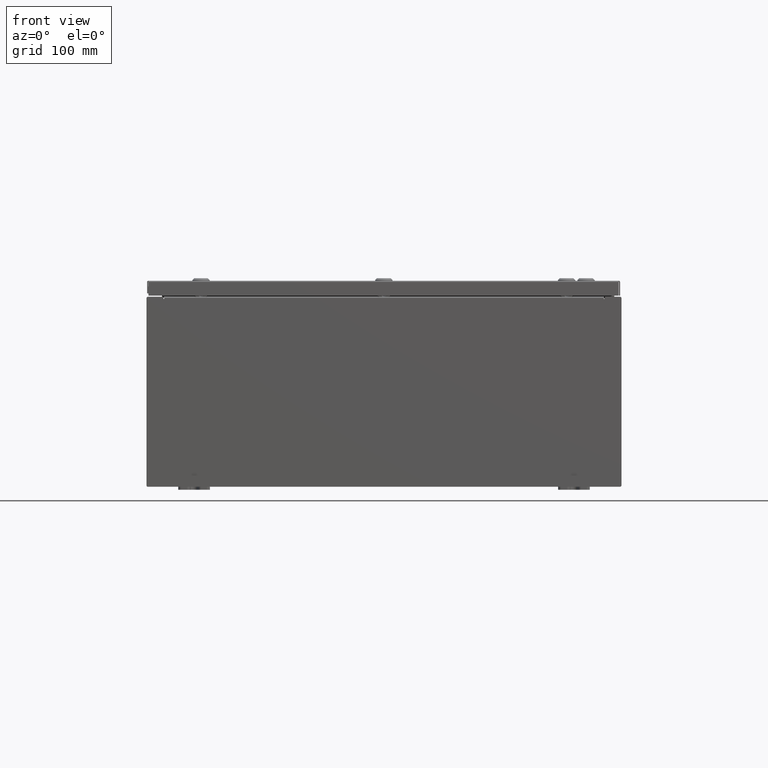
[diagram: clean part render]
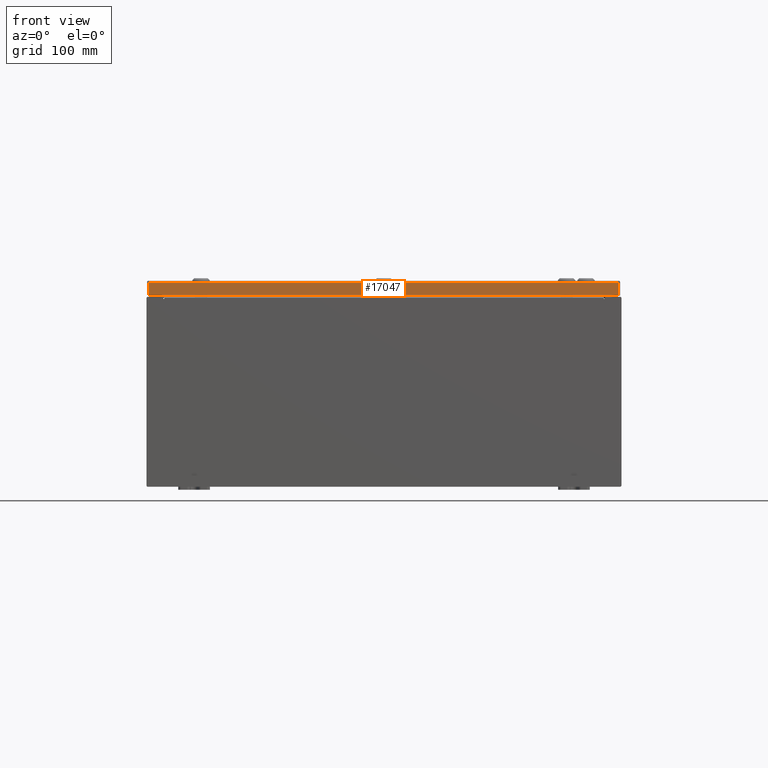
[diagram: same view with one face highlighted and labeled with its STEP entity id]
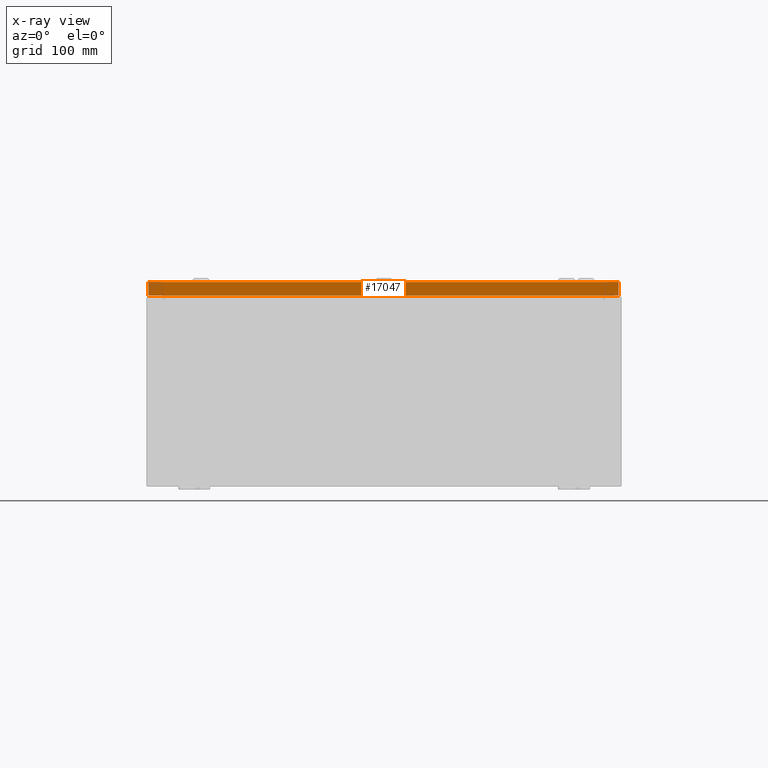
[diagram: x-ray of the same camera — body ghosted, the highlighted face saturated]
A machine part, front view. The second image highlights one B-rep face of the part: STEP entity #17047.
The next image is the same camera in x-ray: the body ghosted, the highlighted face saturated — about 0% of this face is hidden behind the body in this view.
In plain terms, the highlighted planar face has unit normal (-0, 1, -0).
Its self-contained STEP definition (entity closure, byte-faithful):
#231 = CARTESIAN_POINT ( 'NONE',  ( 14.84865786437626800, -14.93750000000000000, -0.9376999999999997600 ) ) ;
#351 = DIRECTION ( 'NONE',  ( 0.0000000000000000000, 2.532419924601866100E-015, 1.000000000000000000 ) ) ;
#1551 = CARTESIAN_POINT ( 'NONE',  ( -14.84865786437626400, -14.93750000000000000, -0.9376999999999959800 ) ) ;
#4479 = EDGE_CURVE ( 'NONE', #24484, #44148, #20479, .T. ) ;
#5174 = FACE_OUTER_BOUND ( 'NONE', #65646, .T. ) ;
#5704 = VECTOR ( 'NONE', #6903, 39.37007874015748100 ) ;
#6721 = DIRECTION ( 'NONE',  ( -0.0000000000000000000, -2.532419924601866100E-015, -1.000000000000000000 ) ) ;
#6903 = DIRECTION ( 'NONE',  ( -1.000000000000000000, 4.379057701015054300E-047, 1.280196549332207500E-016 ) ) ;
#13436 = EDGE_CURVE ( 'NONE', #44148, #46303, #19088, .T. ) ;
#14219 = ORIENTED_EDGE ( 'NONE', *, *, #13436, .F. ) ;
#15399 = PLANE ( 'NONE',  #52127 ) ;
#17047 = ADVANCED_FACE ( 'NONE', ( #5174 ), #15399, .F. ) ;
#17332 = VECTOR ( 'NONE', #6721, 39.37007874015748100 ) ;
#19088 = LINE ( 'NONE', #57330, #5704 ) ;
#20479 = LINE ( 'NONE', #60734, #17332 ) ;
#24484 = VERTEX_POINT ( 'NONE', #49614 ) ;
#25185 = VECTOR ( 'NONE', #63222, 39.37007874015748100 ) ;
#26293 = ORIENTED_EDGE ( 'NONE', *, *, #4479, .F. ) ;
#30472 = DIRECTION ( 'NONE',  ( 0.0000000000000000000, -2.532419924601866100E-015, -1.000000000000000000 ) ) ;
#30605 = DIRECTION ( 'NONE',  ( -3.241995248935437300E-031, 1.000000000000000000, -2.532419924601866100E-015 ) ) ;
#33370 = VECTOR ( 'NONE', #30472, 39.37007874015748100 ) ;
#38709 = ORIENTED_EDGE ( 'NONE', *, *, #59004, .T. ) ;
#39081 = EDGE_CURVE ( 'NONE', #64699, #24484, #65707, .T. ) ;
#44148 = VERTEX_POINT ( 'NONE', #231 ) ;
#45583 = ORIENTED_EDGE ( 'NONE', *, *, #39081, .F. ) ;
#46303 = VERTEX_POINT ( 'NONE', #1551 ) ;
#48439 = LINE ( 'NONE', #55738, #33370 ) ;
#49614 = CARTESIAN_POINT ( 'NONE',  ( 14.84865786437626400, -14.93749999999999800, -0.08770000000000008300 ) ) ;
#50551 = CARTESIAN_POINT ( 'NONE',  ( 4.842730403097308800E-030, -14.93749999999999800, 3.808883627975194400E-014 ) ) ;
#52127 = AXIS2_PLACEMENT_3D ( 'NONE', #50551, #30605, #351 ) ;
#55738 = CARTESIAN_POINT ( 'NONE',  ( -14.84865786437626800, -14.93749999999999800, 3.808883627975194400E-014 ) ) ;
#57330 = CARTESIAN_POINT ( 'NONE',  ( 14.93749999999999800, -14.93750000000000000, -0.9376999999999997600 ) ) ;
#58080 = CARTESIAN_POINT ( 'NONE',  ( 14.93749999999999800, -14.93749999999999800, -0.08770000000000008300 ) ) ;
#59004 = EDGE_CURVE ( 'NONE', #64699, #46303, #48439, .T. ) ;
#60734 = CARTESIAN_POINT ( 'NONE',  ( 14.84865786437626800, -14.93749999999999800, -0.07469999999999980800 ) ) ;
#61909 = CARTESIAN_POINT ( 'NONE',  ( -14.84865786437626400, -14.93749999999999800, -0.08770000000000008300 ) ) ;
#63222 = DIRECTION ( 'NONE',  ( 1.000000000000000000, 3.241995248935437700E-031, -8.117058051628662200E-046 ) ) ;
#64699 = VERTEX_POINT ( 'NONE', #61909 ) ;
#65646 = EDGE_LOOP ( 'NONE', ( #45583, #38709, #14219, #26293 ) ) ;
#65707 = LINE ( 'NONE', #58080, #25185 ) ;